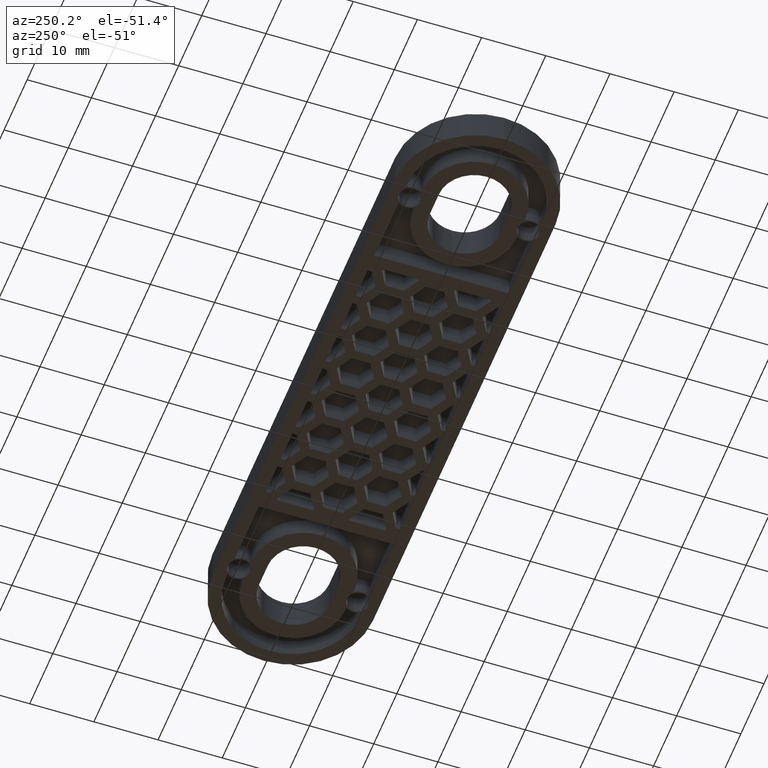
[diagram: clean part render]
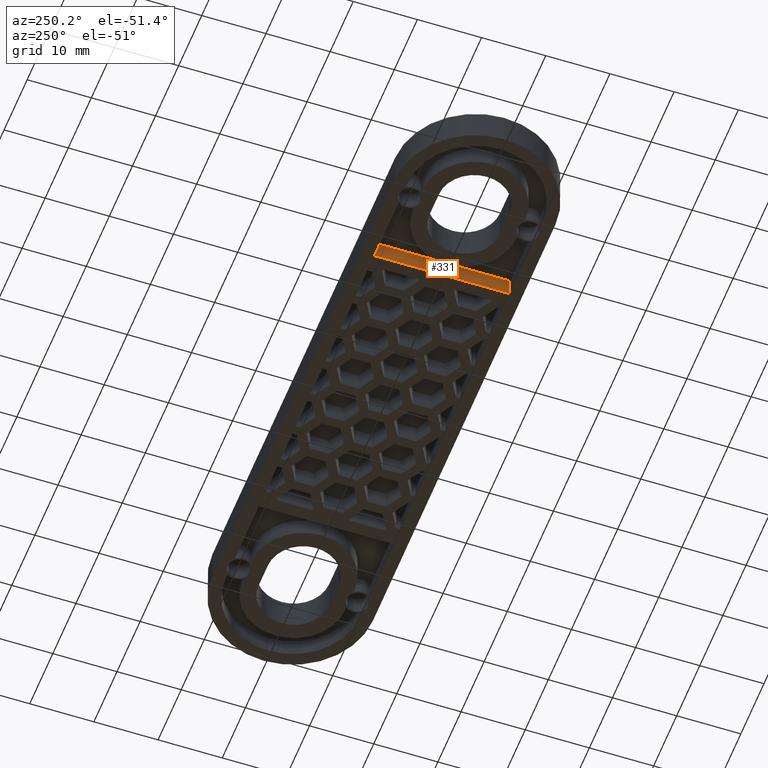
[diagram: same view with one face highlighted and labeled with its STEP entity id]
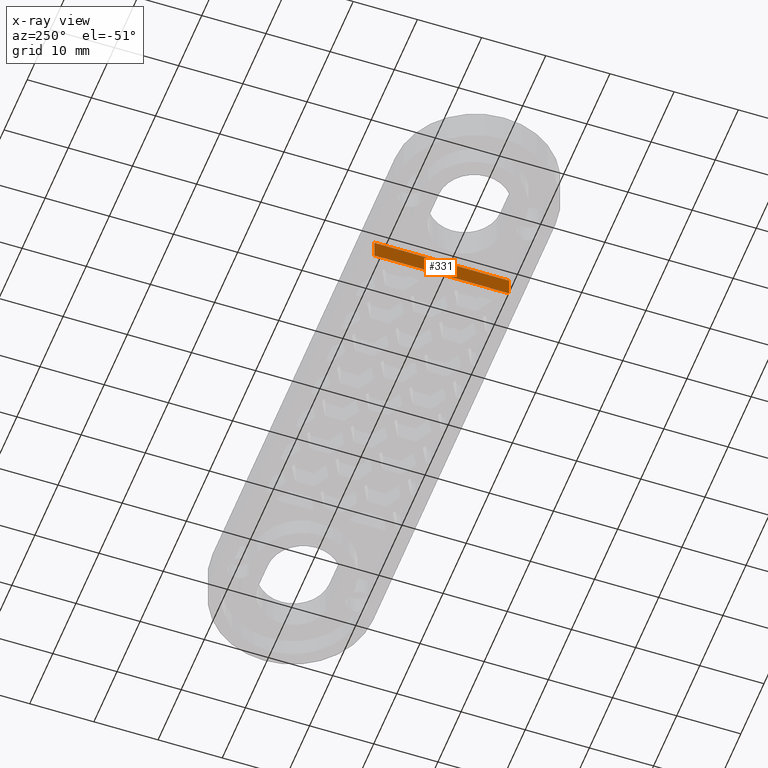
[diagram: x-ray of the same camera — body ghosted, the highlighted face saturated]
A machine part, auxiliary view. The second image highlights one B-rep face of the part: STEP entity #331.
The next image is the same camera in x-ray: the body ghosted, the highlighted face saturated — about 0% of this face is hidden behind the body in this view.
In plain terms, the highlighted planar face has unit normal (-1, 0, 0).
Its self-contained STEP definition (entity closure, byte-faithful):
#331 = ADVANCED_FACE( '', ( #1001 ), #1002, .T. );
#1001 = FACE_OUTER_BOUND( '', #1767, .T. );
#1002 = PLANE( '', #1768 );
#1767 = EDGE_LOOP( '', ( #4055, #4056, #4057, #4058 ) );
#1768 = AXIS2_PLACEMENT_3D( '', #4059, #4060, #4061 );
#4055 = ORIENTED_EDGE( '', *, *, #5613, .T. );
#4056 = ORIENTED_EDGE( '', *, *, #4915, .F. );
#4057 = ORIENTED_EDGE( '', *, *, #4873, .F. );
#4058 = ORIENTED_EDGE( '', *, *, #5614, .T. );
#4059 = CARTESIAN_POINT( '', ( -25.0000000000000, -10.5000000000000, 3.00000000000000 ) );
#4060 = DIRECTION( '', ( -1.00000000000000, 0.000000000000000, 0.000000000000000 ) );
#4061 = DIRECTION( '', ( 0.000000000000000, -1.00000000000000, 6.12303176911189E-017 ) );
#4873 = EDGE_CURVE( '', #5836, #5838, #5839, .T. );
#4915 = EDGE_CURVE( '', #5838, #5903, #5917, .T. );
#5613 = EDGE_CURVE( '', #7082, #5903, #7083, .T. );
#5614 = EDGE_CURVE( '', #5836, #7082, #7084, .T. );
#5836 = VERTEX_POINT( '', #7372 );
#5838 = VERTEX_POINT( '', #7375 );
#5839 = LINE( '', #7376, #7377 );
#5903 = VERTEX_POINT( '', #7457 );
#5917 = LINE( '', #7474, #7475 );
#7082 = VERTEX_POINT( '', #9317 );
#7083 = LINE( '', #9318, #9319 );
#7084 = LINE( '', #9320, #9321 );
#7372 = CARTESIAN_POINT( '', ( -25.0000000000000, -10.5000000000000, 3.00000000000000 ) );
#7375 = CARTESIAN_POINT( '', ( -25.0000000000000, -10.5000000000000, 6.42918335756749E-016 ) );
#7376 = CARTESIAN_POINT( '', ( -25.0000000000000, -10.5000000000000, 3.00000000000000 ) );
#7377 = VECTOR( '', #9593, 1000.00000000000 );
#7457 = CARTESIAN_POINT( '', ( -25.0000000000000, 10.5000000000000, -6.42918335756748E-016 ) );
#7474 = CARTESIAN_POINT( '', ( -25.0000000000000, -10.5000000000000, 6.42918335756749E-016 ) );
#7475 = VECTOR( '', #9679, 1000.00000000000 );
#9317 = CARTESIAN_POINT( '', ( -25.0000000000000, 10.5000000000000, 3.00000000000000 ) );
#9318 = CARTESIAN_POINT( '', ( -25.0000000000000, 10.5000000000000, 3.00000000000000 ) );
#9319 = VECTOR( '', #10417, 1000.00000000000 );
#9320 = CARTESIAN_POINT( '', ( -25.0000000000000, -10.5000000000000, 3.00000000000000 ) );
#9321 = VECTOR( '', #10418, 1000.00000000000 );
#9593 = DIRECTION( '', ( 0.000000000000000, -6.12303176911189E-017, -1.00000000000000 ) );
#9679 = DIRECTION( '', ( 0.000000000000000, 1.00000000000000, -6.12303176911189E-017 ) );
#10417 = DIRECTION( '', ( 0.000000000000000, -6.12303176911189E-017, -1.00000000000000 ) );
#10418 = DIRECTION( '', ( 0.000000000000000, 1.00000000000000, -6.12303176911189E-017 ) );